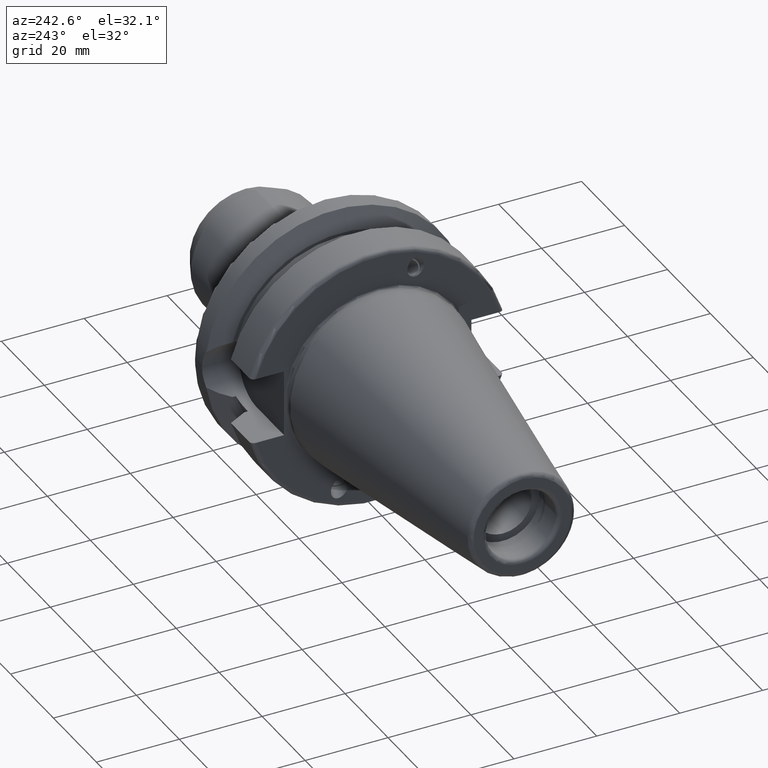
[diagram: clean part render]
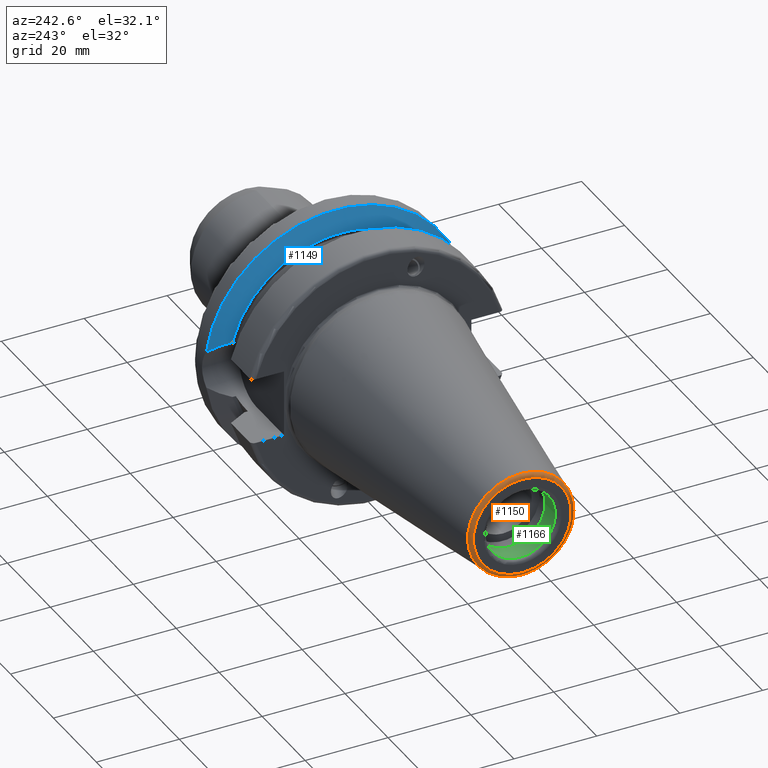
[diagram: same view with three faces highlighted in distinct colors, each labeled with its STEP entity id]
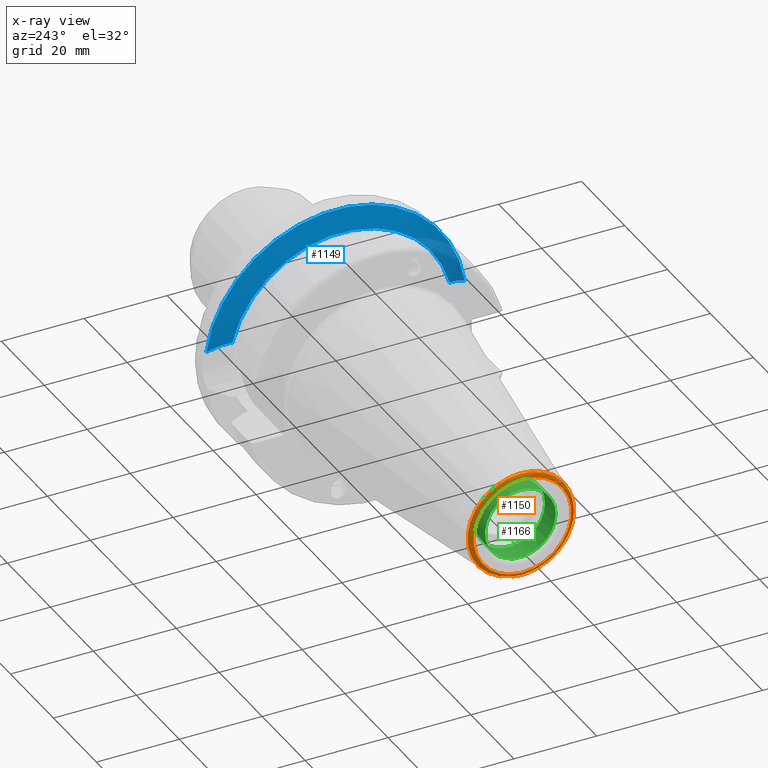
[diagram: x-ray of the same camera — body ghosted, the three highlighted faces saturated]
A machine part, auxiliary view with three faces highlighted in distinct colors.
The next image is the same camera in x-ray (body ghosted, the three faces saturated) — at least one of them is partly hidden behind the body in this view.
Their STEP definitions:

[orange] entity #1150 — the highlighted toroidal blend (fillet) surface has major radius 11.8228 mm and minor (blend) radius 1 mm.
#70=TOROIDAL_SURFACE('',#1294,11.8227555970304,0.999999999999996);
#130=CIRCLE('',#1295,12.8122885780937);
#131=CIRCLE('',#1296,12.8122885780937);
#132=CIRCLE('',#1297,0.999999999999996);
#133=CIRCLE('',#1298,11.8227555970304);
#228=FACE_OUTER_BOUND('',#305,.T.);
#305=EDGE_LOOP('',(#1012,#1013,#1014,#1015,#1016));
#575=VERTEX_POINT('',#2411);
#576=VERTEX_POINT('',#2412);
#577=VERTEX_POINT('',#2415);
#730=EDGE_CURVE('',#575,#576,#130,.T.);
#731=EDGE_CURVE('',#576,#575,#131,.T.);
#732=EDGE_CURVE('',#576,#577,#132,.T.);
#733=EDGE_CURVE('',#577,#577,#133,.T.);
#1012=ORIENTED_EDGE('',*,*,#730,.F.);
#1013=ORIENTED_EDGE('',*,*,#731,.F.);
#1014=ORIENTED_EDGE('',*,*,#732,.T.);
#1015=ORIENTED_EDGE('',*,*,#733,.T.);
#1016=ORIENTED_EDGE('',*,*,#732,.F.);
#1150=ADVANCED_FACE('',(#228),#70,.T.);
#1294=AXIS2_PLACEMENT_3D('',#2410,#1597,#1598);
#1295=AXIS2_PLACEMENT_3D('',#2413,#1599,#1600);
#1296=AXIS2_PLACEMENT_3D('',#2414,#1601,#1602);
#1297=AXIS2_PLACEMENT_3D('',#2416,#1603,#1604);
#1298=AXIS2_PLACEMENT_3D('',#2417,#1605,#1606);
#1597=DIRECTION('center_axis',(1.,0.,0.));
#1598=DIRECTION('ref_axis',(0.,0.,-1.));
#1599=DIRECTION('center_axis',(1.,0.,0.));
#1600=DIRECTION('ref_axis',(0.,0.,-1.));
#1601=DIRECTION('center_axis',(1.,0.,0.));
#1602=DIRECTION('ref_axis',(0.,0.,-1.));
#1603=DIRECTION('center_axis',(0.,-1.,-1.22464679914735E-16));
#1604=DIRECTION('ref_axis',(0.,-1.22464679914735E-16,1.));
#1605=DIRECTION('center_axis',(1.,0.,0.));
#1606=DIRECTION('ref_axis',(0.,0.,-1.));
#2410=CARTESIAN_POINT('Origin',(-64.4,0.,0.));
#2411=CARTESIAN_POINT('',(-64.5443068930717,-12.8122885780937,-1.56905281969147E-15));
#2412=CARTESIAN_POINT('',(-64.5443068930717,-1.56905281969147E-15,12.8122885780937));
#2413=CARTESIAN_POINT('Origin',(-64.5443068930717,0.,0.));
#2414=CARTESIAN_POINT('Origin',(-64.5443068930717,0.,0.));
#2415=CARTESIAN_POINT('',(-65.4,-1.44786997990048E-15,11.8227555970304));
#2416=CARTESIAN_POINT('Origin',(-64.4,-1.44786997990048E-15,11.8227555970304));
#2417=CARTESIAN_POINT('Origin',(-65.4,0.,0.));

[blue] entity #1149 — the highlighted conical surface has half-angle 60.125 deg.
#44=CONICAL_SURFACE('',#1292,29.2970358274569,1.0493792127616);
#119=CIRCLE('',#1271,31.5);
#129=CIRCLE('',#1293,27.0940716549138);
#227=FACE_OUTER_BOUND('',#304,.T.);
#304=EDGE_LOOP('',(#1008,#1009,#1010,#1011));
#346=B_SPLINE_CURVE_WITH_KNOTS('',3,(#2212,#2213,#2214,#2215,#2216,#2217),
 .UNSPECIFIED.,.F.,.F.,(4,2,4),(1.46421027899563,1.54570476603974,2.04294020568402),
 .UNSPECIFIED.);
#355=B_SPLINE_CURVE_WITH_KNOTS('',3,(#2371,#2372,#2373,#2374,#2375,#2376),
 .UNSPECIFIED.,.F.,.F.,(4,2,4),(3.12975744792551,3.6269928875698,3.7084873746139),
 .UNSPECIFIED.);
#533=VERTEX_POINT('',#2204);
#534=VERTEX_POINT('',#2211);
#554=VERTEX_POINT('',#2291);
#567=VERTEX_POINT('',#2369);
#671=EDGE_CURVE('',#534,#533,#346,.T.);
#696=EDGE_CURVE('',#554,#533,#119,.T.);
#718=EDGE_CURVE('',#554,#567,#355,.T.);
#729=EDGE_CURVE('',#567,#534,#129,.T.);
#1008=ORIENTED_EDGE('',*,*,#671,.T.);
#1009=ORIENTED_EDGE('',*,*,#696,.F.);
#1010=ORIENTED_EDGE('',*,*,#718,.T.);
#1011=ORIENTED_EDGE('',*,*,#729,.T.);
#1149=ADVANCED_FACE('',(#227),#44,.T.);
#1271=AXIS2_PLACEMENT_3D('',#2302,#1536,#1537);
#1292=AXIS2_PLACEMENT_3D('',#2408,#1593,#1594);
#1293=AXIS2_PLACEMENT_3D('',#2409,#1595,#1596);
#1536=DIRECTION('center_axis',(1.,0.,0.));
#1537=DIRECTION('ref_axis',(0.,0.,-1.));
#1593=DIRECTION('center_axis',(1.,0.,0.));
#1594=DIRECTION('ref_axis',(0.,1.,0.));
#1595=DIRECTION('center_axis',(1.,0.,0.));
#1596=DIRECTION('ref_axis',(0.,0.,-1.));
#2204=CARTESIAN_POINT('',(21.6309636926618,-31.1782420264945,4.49079326370462));
#2211=CARTESIAN_POINT('',(19.1,-26.201311395455,6.89782574439221));
#2212=CARTESIAN_POINT('Ctrl Pts',(19.1,-26.201311395455,6.89782574439221));
#2213=CARTESIAN_POINT('Ctrl Pts',(19.2210929544554,-26.438473693351,6.82497151762397));
#2214=CARTESIAN_POINT('Ctrl Pts',(19.3406963650696,-26.6728819297427,6.74867108656043));
#2215=CARTESIAN_POINT('Ctrl Pts',(20.1784155384866,-28.3157123387483,6.1823136897693));
#2216=CARTESIAN_POINT('Ctrl Pts',(20.9728756148302,-29.8797957262938,5.46983244373119));
#2217=CARTESIAN_POINT('Ctrl Pts',(21.6309636926618,-31.1782420264945,4.49079326370462));
#2291=CARTESIAN_POINT('',(21.6309636926618,31.1782420264945,4.49079326370462));
#2302=CARTESIAN_POINT('Origin',(21.6309636926618,0.,0.));
#2369=CARTESIAN_POINT('',(19.1,26.201311395455,6.89782574439221));
#2371=CARTESIAN_POINT('Ctrl Pts',(21.6309636926618,31.1782420264945,4.49079326370461));
#2372=CARTESIAN_POINT('Ctrl Pts',(20.9728756148302,29.8797957262938,5.46983244373119));
#2373=CARTESIAN_POINT('Ctrl Pts',(20.1784155384866,28.3157123387483,6.1823136897693));
#2374=CARTESIAN_POINT('Ctrl Pts',(19.3406963650696,26.6728819297427,6.74867108656043));
#2375=CARTESIAN_POINT('Ctrl Pts',(19.2210929544554,26.438473693351,6.82497151762397));
#2376=CARTESIAN_POINT('Ctrl Pts',(19.1,26.201311395455,6.89782574439222));
#2408=CARTESIAN_POINT('Origin',(20.3654818463309,0.,0.));
#2409=CARTESIAN_POINT('Origin',(19.1,0.,0.));

[green] entity #1166 — the highlighted cylindrical surface (bore or boss wall) has radius 8.5 mm, axis along (1, 0, 0).
#149=CIRCLE('',#1329,8.5);
#150=CIRCLE('',#1331,8.5);
#151=CIRCLE('',#1332,8.5);
#180=CYLINDRICAL_SURFACE('',#1330,8.5);
#244=FACE_OUTER_BOUND('',#326,.T.);
#326=EDGE_LOOP('',(#1090,#1091,#1092,#1093,#1094));
#416=LINE('',#2464,#476);
#476=VECTOR('',#1676,8.5);
#585=VERTEX_POINT('',#2459);
#586=VERTEX_POINT('',#2463);
#587=VERTEX_POINT('',#2465);
#754=EDGE_CURVE('',#585,#585,#149,.T.);
#755=EDGE_CURVE('',#585,#586,#416,.T.);
#756=EDGE_CURVE('',#587,#586,#150,.T.);
#757=EDGE_CURVE('',#586,#587,#151,.T.);
#1090=ORIENTED_EDGE('',*,*,#754,.T.);
#1091=ORIENTED_EDGE('',*,*,#755,.T.);
#1092=ORIENTED_EDGE('',*,*,#756,.F.);
#1093=ORIENTED_EDGE('',*,*,#757,.F.);
#1094=ORIENTED_EDGE('',*,*,#755,.F.);
#1166=ADVANCED_FACE('',(#244),#180,.F.);
#1329=AXIS2_PLACEMENT_3D('',#2461,#1672,#1673);
#1330=AXIS2_PLACEMENT_3D('',#2462,#1674,#1675);
#1331=AXIS2_PLACEMENT_3D('',#2466,#1677,#1678);
#1332=AXIS2_PLACEMENT_3D('',#2467,#1679,#1680);
#1672=DIRECTION('center_axis',(1.,0.,0.));
#1673=DIRECTION('ref_axis',(0.,0.,-1.));
#1674=DIRECTION('center_axis',(1.,0.,0.));
#1675=DIRECTION('ref_axis',(0.,1.,0.));
#1676=DIRECTION('',(-1.,0.,0.));
#1677=DIRECTION('center_axis',(1.,0.,0.));
#1678=DIRECTION('ref_axis',(0.,0.,-1.));
#1679=DIRECTION('center_axis',(1.,0.,0.));
#1680=DIRECTION('ref_axis',(0.,0.,-1.));
#2459=CARTESIAN_POINT('',(-59.5196152422707,-8.5,-1.04094977927525E-15));
#2461=CARTESIAN_POINT('Origin',(-59.5196152422707,0.,0.));
#2462=CARTESIAN_POINT('Origin',(-61.9598076211353,0.,0.));
#2463=CARTESIAN_POINT('',(-64.4,-8.5,-1.04094977927525E-15));
#2464=CARTESIAN_POINT('',(-61.9598076211353,-8.5,-1.04094977927525E-15));
#2465=CARTESIAN_POINT('',(-64.4,-1.04094977927525E-15,8.5));
#2466=CARTESIAN_POINT('Origin',(-64.4,0.,0.));
#2467=CARTESIAN_POINT('Origin',(-64.4,0.,0.));